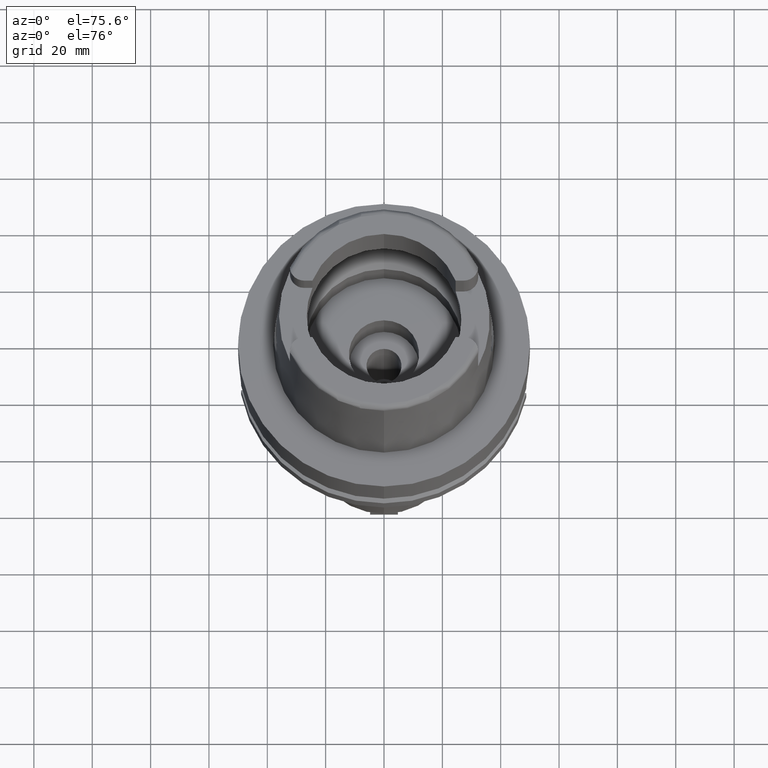
[diagram: clean part render]
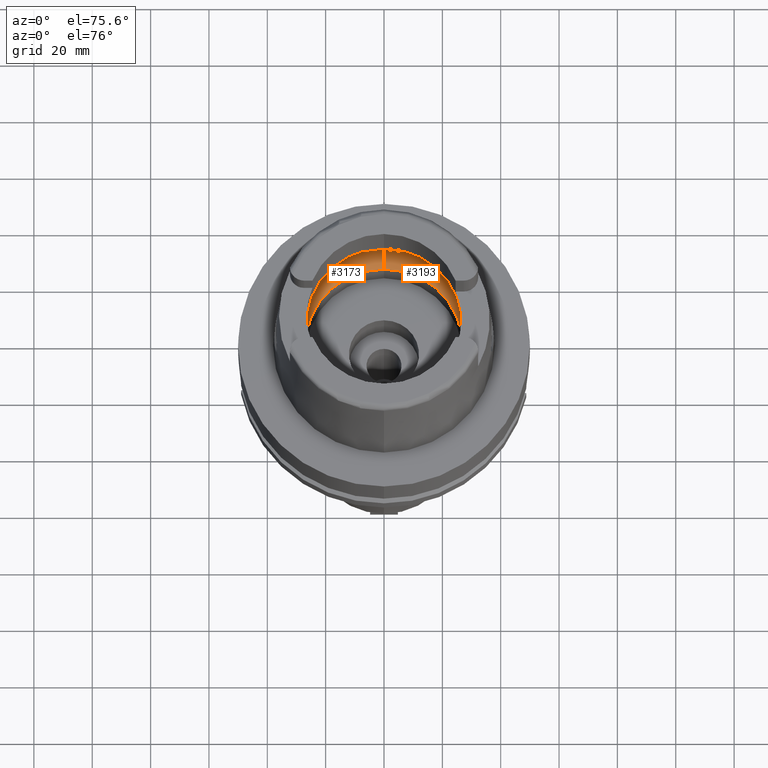
[diagram: same view with one multi-face feature highlighted, each face labeled with its STEP entity id]
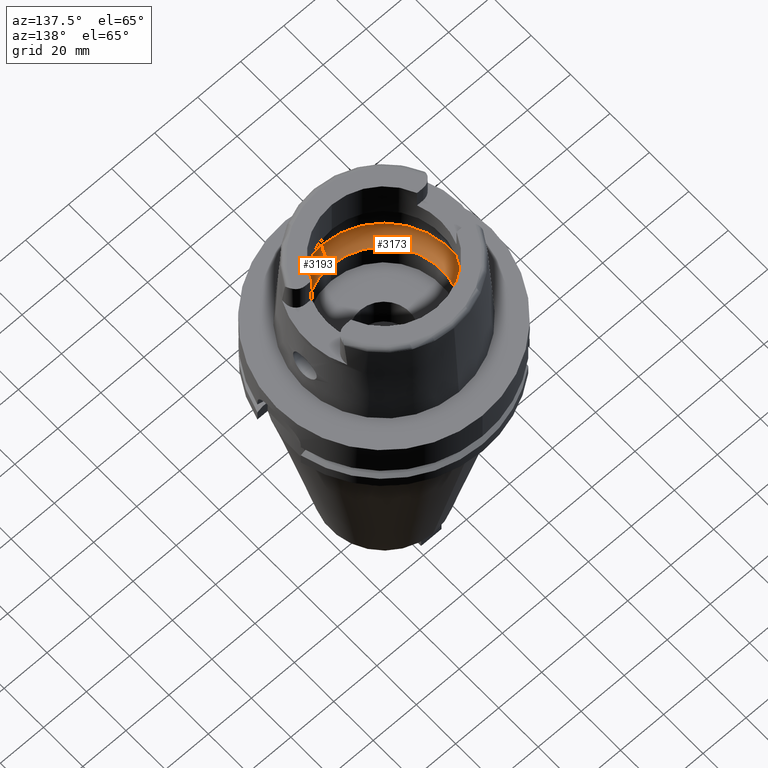
[diagram: same view with one multi-face feature highlighted, each face labeled with its STEP entity id]
A machine part, auxiliary view. The highlighted faces form ONE feature: a constant-radius fillet chain: 2 tangent blend faces with common blend radius 12 mm. The faces share edges in the B-rep.
A second angle (auxiliary view) of the same feature is appended — it is thin or edge-on in the first view.
Their STEP definitions:
[1] entity #3173 (Torus):
#580=CARTESIAN_POINT('',(-3.140918884336E1,-2.390158196044E0,9.496624327026E0));
#624=CARTESIAN_POINT('',(-3.140918884336E1,-2.390158196044E0,9.496624327026E0));
#625=CARTESIAN_POINT('',(-3.142817545704E1,-2.140654152533E0,9.388262810390E0));
#626=CARTESIAN_POINT('',(-3.145843235401E1,-1.626121130666E0,9.205188134635E0));
#627=CARTESIAN_POINT('',(-3.148416659375E1,-8.216262390445E-1,
9.037606438216E0));
#628=CARTESIAN_POINT('',(-3.148971910754E1,-2.740811097498E-1,9.E0));
#629=CARTESIAN_POINT('',(-3.148971910754E1,0.E0,9.E0));
#634=CARTESIAN_POINT('',(-3.148971910754E1,0.E0,9.E0));
#635=CARTESIAN_POINT('',(-3.148971910754E1,2.740813517952E-1,9.E0));
#636=CARTESIAN_POINT('',(-3.148416661469E1,8.216269012394E-1,9.037606318337E0));
#637=CARTESIAN_POINT('',(-3.145843209623E1,1.626127188331E0,9.205189758010E0));
#638=CARTESIAN_POINT('',(-3.142817526839E1,2.140656631637E0,9.388263887083E0));
#639=CARTESIAN_POINT('',(-3.140918884336E1,2.390158196044E0,9.496624327026E0));
#644=CARTESIAN_POINT('',(0.E0,0.E0,9.496624327026E0));
#645=DIRECTION('',(0.E0,0.E0,-1.E0));
#646=DIRECTION('',(-9.971171061384E-1,7.587803796965E-2,0.E0));
#647=AXIS2_PLACEMENT_3D('',#644,#645,#646);
#652=CARTESIAN_POINT('',(0.E0,0.E0,4.993178413024E-2));
#653=DIRECTION('',(0.E0,0.E0,1.E0));
#654=DIRECTION('',(0.E0,1.E0,0.E0));
#655=AXIS2_PLACEMENT_3D('',#652,#653,#654);
#660=CARTESIAN_POINT('',(0.E0,-1.95E1,9.496624327026E0));
#661=DIRECTION('',(-1.E0,0.E0,0.E0));
#662=DIRECTION('',(0.E0,-6.166666666667E-1,-7.872243785746E-1));
#663=AXIS2_PLACEMENT_3D('',#660,#661,#662);
#668=CARTESIAN_POINT('',(0.E0,0.E0,9.496624327026E0));
#669=DIRECTION('',(0.E0,0.E0,-1.E0));
#670=DIRECTION('',(0.E0,-1.E0,0.E0));
#671=AXIS2_PLACEMENT_3D('',#668,#669,#670);
#702=CARTESIAN_POINT('',(0.E0,1.95E1,9.496624327026E0));
#703=DIRECTION('',(1.E0,0.E0,0.E0));
#704=DIRECTION('',(0.E0,6.166666666667E-1,-7.872243785746E-1));
#705=AXIS2_PLACEMENT_3D('',#702,#703,#704);
#2495=VERTEX_POINT('',#580);
#2496=CARTESIAN_POINT('',(0.E0,-3.15E1,9.496624327026E0));
#2497=VERTEX_POINT('',#2496);
#2498=CARTESIAN_POINT('',(0.E0,3.15E1,9.496624327026E0));
#2499=VERTEX_POINT('',#2498);
#2500=CARTESIAN_POINT('',(-3.140918884336E1,2.390158196044E0,9.496624327026E0));
#2501=VERTEX_POINT('',#2500);
#2502=CARTESIAN_POINT('',(-3.148971910754E1,0.E0,9.E0));
#2503=VERTEX_POINT('',#2502);
#2508=CARTESIAN_POINT('',(0.E0,2.69E1,4.993178413024E-2));
#2509=VERTEX_POINT('',#2508);
#2510=CARTESIAN_POINT('',(0.E0,-2.69E1,4.993178413024E-2));
#2511=VERTEX_POINT('',#2510);
#3156=CARTESIAN_POINT('',(0.E0,0.E0,9.496624327026E0));
#3157=DIRECTION('',(0.E0,0.E0,1.E0));
#3158=DIRECTION('',(0.E0,1.E0,0.E0));
#3159=AXIS2_PLACEMENT_3D('',#3156,#3157,#3158);
#3160=TOROIDAL_SURFACE('',#3159,1.95E1,1.2E1);
#3161=ORIENTED_EDGE('',*,*,#3137,.T.);
#3162=ORIENTED_EDGE('',*,*,#3148,.T.);
#3163=ORIENTED_EDGE('',*,*,#3119,.T.);
#3165=ORIENTED_EDGE('',*,*,#3164,.F.);
#3167=ORIENTED_EDGE('',*,*,#3166,.T.);
#3169=ORIENTED_EDGE('',*,*,#3168,.T.);
#3170=ORIENTED_EDGE('',*,*,#3112,.T.);
#3171=EDGE_LOOP('',(#3161,#3162,#3163,#3165,#3167,#3169,#3170));
#3172=FACE_OUTER_BOUND('',#3171,.F.);
#630=B_SPLINE_CURVE_WITH_KNOTS('',3,(#624,#625,#626,#627,#628,#629),
.UNSPECIFIED.,.F.,.F.,(4,1,1,4),(0.E0,3.333333333333E-1,6.666666666667E-1,1.E0),
.UNSPECIFIED.);
#640=B_SPLINE_CURVE_WITH_KNOTS('',3,(#634,#635,#636,#637,#638,#639),
.UNSPECIFIED.,.F.,.F.,(4,1,1,4),(0.E0,3.333333333333E-1,6.666666666667E-1,1.E0),
.UNSPECIFIED.);
#648=CIRCLE('',#647,3.15E1);
#656=CIRCLE('',#655,2.69E1);
#664=CIRCLE('',#663,1.2E1);
#672=CIRCLE('',#671,3.15E1);
#706=CIRCLE('',#705,1.2E1);
#3112=EDGE_CURVE('',#2497,#2495,#672,.T.);
#3119=EDGE_CURVE('',#2501,#2499,#648,.T.);
#3137=EDGE_CURVE('',#2495,#2503,#630,.T.);
#3148=EDGE_CURVE('',#2503,#2501,#640,.T.);
#3164=EDGE_CURVE('',#2509,#2499,#706,.T.);
#3166=EDGE_CURVE('',#2509,#2511,#656,.T.);
#3168=EDGE_CURVE('',#2511,#2497,#664,.T.);
#3173=ADVANCED_FACE('',(#3172),#3160,.F.);
[2] entity #3193 (Torus):
#660=CARTESIAN_POINT('',(0.E0,-1.95E1,9.496624327026E0));
#661=DIRECTION('',(-1.E0,0.E0,0.E0));
#662=DIRECTION('',(0.E0,-6.166666666667E-1,-7.872243785746E-1));
#663=AXIS2_PLACEMENT_3D('',#660,#661,#662);
#676=CARTESIAN_POINT('',(3.148971910754E1,0.E0,9.E0));
#677=CARTESIAN_POINT('',(3.148971910754E1,-2.740816369241E-1,9.E0));
#678=CARTESIAN_POINT('',(3.148416657244E1,-8.216274657312E-1,9.037606582852E0));
#679=CARTESIAN_POINT('',(3.145843229729E1,-1.626122314408E0,9.205188491873E0));
#680=CARTESIAN_POINT('',(3.142817542026E1,-2.140654635827E0,9.388263020288E0));
#681=CARTESIAN_POINT('',(3.140918884336E1,-2.390158196044E0,9.496624327026E0));
#686=CARTESIAN_POINT('',(0.E0,0.E0,9.496624327026E0));
#687=DIRECTION('',(0.E0,0.E0,-1.E0));
#688=DIRECTION('',(9.971171061384E-1,-7.587803796965E-2,0.E0));
#689=AXIS2_PLACEMENT_3D('',#686,#687,#688);
#694=CARTESIAN_POINT('',(0.E0,0.E0,4.993178413024E-2));
#695=DIRECTION('',(0.E0,0.E0,1.E0));
#696=DIRECTION('',(0.E0,-1.E0,0.E0));
#697=AXIS2_PLACEMENT_3D('',#694,#695,#696);
#702=CARTESIAN_POINT('',(0.E0,1.95E1,9.496624327026E0));
#703=DIRECTION('',(1.E0,0.E0,0.E0));
#704=DIRECTION('',(0.E0,6.166666666667E-1,-7.872243785746E-1));
#705=AXIS2_PLACEMENT_3D('',#702,#703,#704);
#710=CARTESIAN_POINT('',(0.E0,0.E0,9.496624327026E0));
#711=DIRECTION('',(0.E0,0.E0,-1.E0));
#712=DIRECTION('',(0.E0,1.E0,0.E0));
#713=AXIS2_PLACEMENT_3D('',#710,#711,#712);
#718=CARTESIAN_POINT('',(3.140918884336E1,2.390158196044E0,9.496624327026E0));
#719=CARTESIAN_POINT('',(3.142817530553E1,2.140656143518E0,9.388263675090E0));
#720=CARTESIAN_POINT('',(3.145843215351E1,1.626125992770E0,9.205189397203E0));
#721=CARTESIAN_POINT('',(3.148416663622E1,8.216256622719E-1,9.037606172252E0));
#722=CARTESIAN_POINT('',(3.148971910754E1,2.740808193429E-1,9.E0));
#723=CARTESIAN_POINT('',(3.148971910754E1,0.E0,9.E0));
#735=CARTESIAN_POINT('',(3.140918884336E1,-2.390158196044E0,9.496624327026E0));
#766=CARTESIAN_POINT('',(3.140918884336E1,2.390158196044E0,9.496624327026E0));
#2496=CARTESIAN_POINT('',(0.E0,-3.15E1,9.496624327026E0));
#2497=VERTEX_POINT('',#2496);
#2498=CARTESIAN_POINT('',(0.E0,3.15E1,9.496624327026E0));
#2499=VERTEX_POINT('',#2498);
#2504=VERTEX_POINT('',#735);
#2506=VERTEX_POINT('',#676);
#2507=VERTEX_POINT('',#766);
#2508=CARTESIAN_POINT('',(0.E0,2.69E1,4.993178413024E-2));
#2509=VERTEX_POINT('',#2508);
#2510=CARTESIAN_POINT('',(0.E0,-2.69E1,4.993178413024E-2));
#2511=VERTEX_POINT('',#2510);
#3174=CARTESIAN_POINT('',(0.E0,0.E0,9.496624327026E0));
#3175=DIRECTION('',(0.E0,0.E0,1.E0));
#3176=DIRECTION('',(0.E0,1.E0,0.E0));
#3177=AXIS2_PLACEMENT_3D('',#3174,#3175,#3176);
#3178=TOROIDAL_SURFACE('',#3177,1.95E1,1.2E1);
#3180=ORIENTED_EDGE('',*,*,#3179,.T.);
#3182=ORIENTED_EDGE('',*,*,#3181,.T.);
#3183=ORIENTED_EDGE('',*,*,#3168,.F.);
#3185=ORIENTED_EDGE('',*,*,#3184,.T.);
#3186=ORIENTED_EDGE('',*,*,#3164,.T.);
#3188=ORIENTED_EDGE('',*,*,#3187,.T.);
#3190=ORIENTED_EDGE('',*,*,#3189,.T.);
#3191=EDGE_LOOP('',(#3180,#3182,#3183,#3185,#3186,#3188,#3190));
#3192=FACE_OUTER_BOUND('',#3191,.F.);
#664=CIRCLE('',#663,1.2E1);
#682=B_SPLINE_CURVE_WITH_KNOTS('',3,(#676,#677,#678,#679,#680,#681),
.UNSPECIFIED.,.F.,.F.,(4,1,1,4),(0.E0,3.333333333333E-1,6.666666666667E-1,1.E0),
.UNSPECIFIED.);
#690=CIRCLE('',#689,3.15E1);
#698=CIRCLE('',#697,2.69E1);
#706=CIRCLE('',#705,1.2E1);
#714=CIRCLE('',#713,3.15E1);
#724=B_SPLINE_CURVE_WITH_KNOTS('',3,(#718,#719,#720,#721,#722,#723),
.UNSPECIFIED.,.F.,.F.,(4,1,1,4),(0.E0,3.333333333333E-1,6.666666666667E-1,1.E0),
.UNSPECIFIED.);
#3164=EDGE_CURVE('',#2509,#2499,#706,.T.);
#3168=EDGE_CURVE('',#2511,#2497,#664,.T.);
#3179=EDGE_CURVE('',#2506,#2504,#682,.T.);
#3181=EDGE_CURVE('',#2504,#2497,#690,.T.);
#3184=EDGE_CURVE('',#2511,#2509,#698,.T.);
#3187=EDGE_CURVE('',#2499,#2507,#714,.T.);
#3189=EDGE_CURVE('',#2507,#2506,#724,.T.);
#3193=ADVANCED_FACE('',(#3192),#3178,.F.);